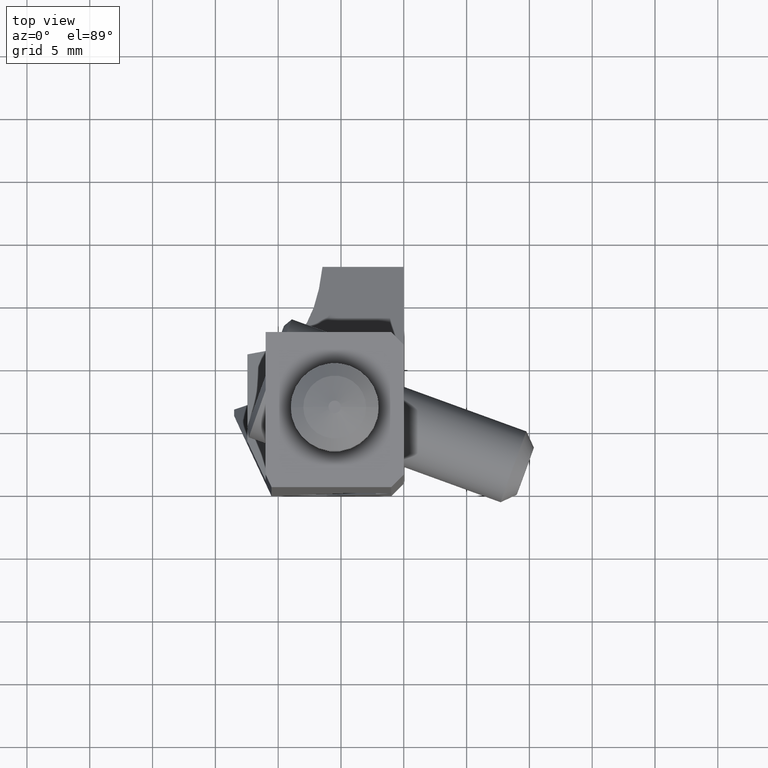
[diagram: clean part render]
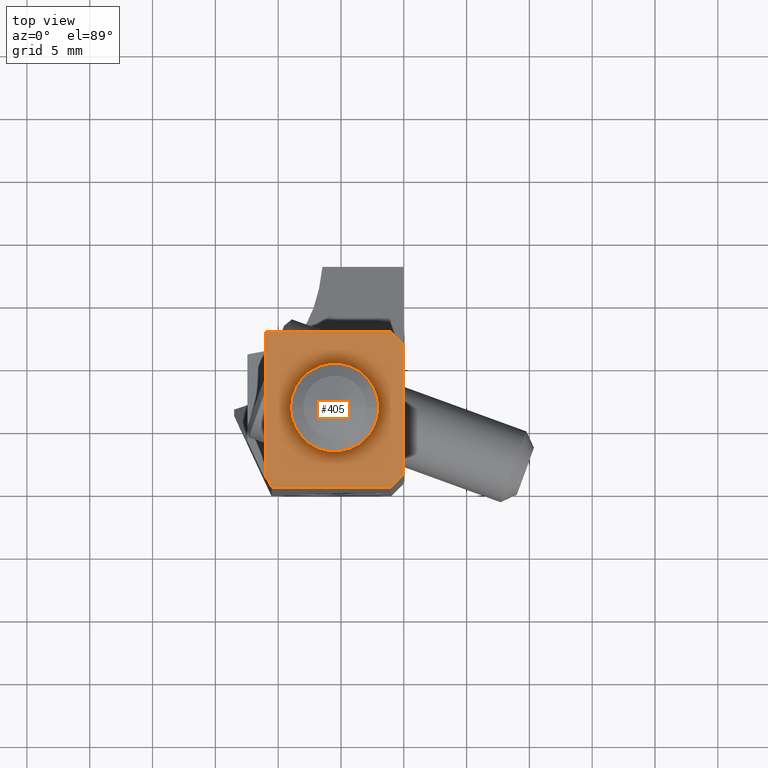
[diagram: same view with one face highlighted and labeled with its STEP entity id]
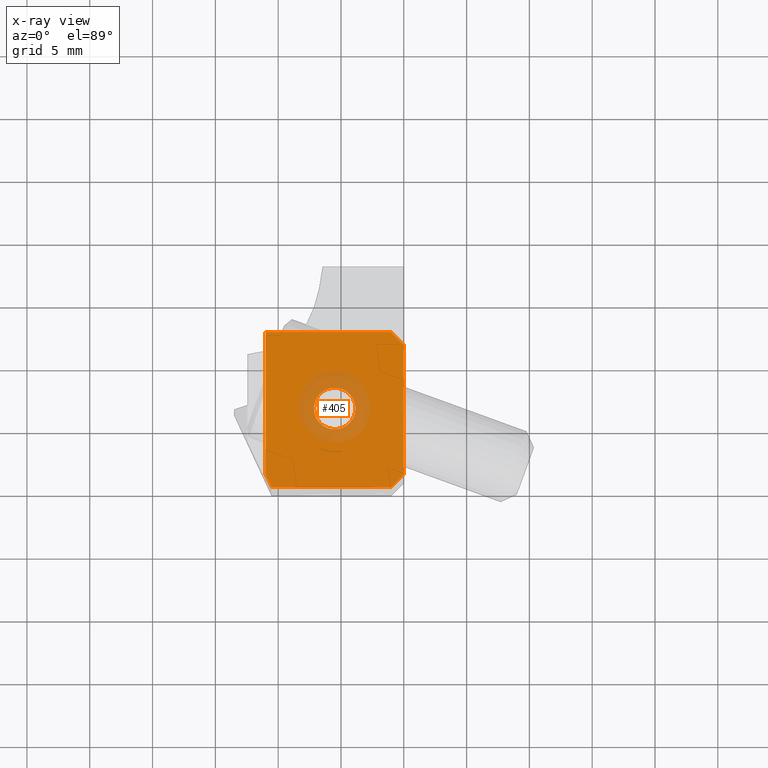
[diagram: x-ray of the same camera — body ghosted, the highlighted face saturated]
A machine part, top view. The second image highlights one B-rep face of the part: STEP entity #405.
The next image is the same camera in x-ray: the body ghosted, the highlighted face saturated — about 13% of this face is hidden behind the body in this view.
In plain terms, the highlighted planar face has unit normal (0, 0, 1).
Its self-contained STEP definition (entity closure, byte-faithful):
#121=FACE_BOUND('',#948,.T.);
#122=FACE_BOUND('',#949,.T.);
#224=CIRCLE('',#4297,1.65);
#225=CIRCLE('',#4298,1.65);
#405=ADVANCED_FACE('',(#121,#122),#617,.T.);
#617=PLANE('',#4299);
#948=EDGE_LOOP('',(#1415,#1416,#1417,#1418,#1419,#1420,#1421));
#949=EDGE_LOOP('',(#1422,#1423));
#1415=ORIENTED_EDGE('',*,*,#2909,.F.);
#1416=ORIENTED_EDGE('',*,*,#2910,.F.);
#1417=ORIENTED_EDGE('',*,*,#2911,.F.);
#1418=ORIENTED_EDGE('',*,*,#2794,.F.);
#1419=ORIENTED_EDGE('',*,*,#2912,.F.);
#1420=ORIENTED_EDGE('',*,*,#2890,.T.);
#1421=ORIENTED_EDGE('',*,*,#2908,.F.);
#1422=ORIENTED_EDGE('',*,*,#2913,.F.);
#1423=ORIENTED_EDGE('',*,*,#2914,.F.);
#2411=VERTEX_POINT('',#5952);
#2412=VERTEX_POINT('',#5954);
#2482=VERTEX_POINT('',#6161);
#2483=VERTEX_POINT('',#6163);
#2495=VERTEX_POINT('',#6199);
#2496=VERTEX_POINT('',#6203);
#2497=VERTEX_POINT('',#6205);
#2498=VERTEX_POINT('',#6209);
#2499=VERTEX_POINT('',#6210);
#2794=EDGE_CURVE('',#2411,#2412,#3385,.T.);
#2890=EDGE_CURVE('',#2483,#2482,#3452,.T.);
#2908=EDGE_CURVE('',#2495,#2482,#3463,.T.);
#2909=EDGE_CURVE('',#2496,#2495,#3464,.T.);
#2910=EDGE_CURVE('',#2497,#2496,#3465,.T.);
#2911=EDGE_CURVE('',#2412,#2497,#3466,.T.);
#2912=EDGE_CURVE('',#2483,#2411,#3467,.T.);
#2913=EDGE_CURVE('',#2498,#2499,#224,.T.);
#2914=EDGE_CURVE('',#2499,#2498,#225,.T.);
#3385=LINE('',#5953,#3738);
#3452=LINE('',#6162,#3805);
#3463=LINE('',#6200,#3816);
#3464=LINE('',#6202,#3817);
#3465=LINE('',#6204,#3818);
#3466=LINE('',#6206,#3819);
#3467=LINE('',#6207,#3820);
#3738=VECTOR('',#4717,1.);
#3805=VECTOR('',#4884,1.);
#3816=VECTOR('',#4915,1.);
#3817=VECTOR('',#4918,1.);
#3818=VECTOR('',#4919,1.);
#3819=VECTOR('',#4920,1.);
#3820=VECTOR('',#4921,1.);
#4297=AXIS2_PLACEMENT_3D('',#6208,#4922,#4923);
#4298=AXIS2_PLACEMENT_3D('',#6211,#4924,#4925);
#4299=AXIS2_PLACEMENT_3D('',#6212,#4926,#4927);
#4717=DIRECTION('',(-1.,-1.831841763832E-14,0.));
#4884=DIRECTION('',(0.,1.,0.));
#4915=DIRECTION('',(0.707106781186547,-0.707106781186547,0.));
#4918=DIRECTION('',(1.,0.,0.));
#4919=DIRECTION('',(3.007360755836E-14,1.,0.));
#4920=DIRECTION('',(-0.422618261741086,0.90630778703647,0.));
#4921=DIRECTION('',(-0.707106781186547,-0.707106781186547,0.));
#4922=DIRECTION('',(0.,0.,1.));
#4923=DIRECTION('',(1.,0.,0.));
#4924=DIRECTION('',(0.,0.,1.));
#4925=DIRECTION('',(-1.,0.,0.));
#4926=DIRECTION('',(0.,0.,1.));
#4927=DIRECTION('',(-1.,0.,0.));
#5952=CARTESIAN_POINT('',(-1.,0.,0.));
#5953=CARTESIAN_POINT('',(-1.,0.,0.));
#5954=CARTESIAN_POINT('',(-10.52942936185,-1.736388810514E-13,0.));
#6161=CARTESIAN_POINT('',(0.,11.35,0.));
#6162=CARTESIAN_POINT('',(0.,1.,0.));
#6163=CARTESIAN_POINT('',(0.,1.,0.));
#6199=CARTESIAN_POINT('',(-1.,12.35,0.));
#6200=CARTESIAN_POINT('',(-1.,12.35,0.));
#6202=CARTESIAN_POINT('',(-11.,12.35,0.));
#6203=CARTESIAN_POINT('',(-11.,12.35,0.));
#6204=CARTESIAN_POINT('',(-11.,1.0091419901,0.));
#6205=CARTESIAN_POINT('',(-11.,1.0091419901,0.));
#6206=CARTESIAN_POINT('',(-10.52942936185,-1.736388810514E-13,0.));
#6207=CARTESIAN_POINT('',(0.,1.,0.));
#6208=CARTESIAN_POINT('',(-5.5,6.25,0.));
#6209=CARTESIAN_POINT('',(-3.85,6.25,1.06581410364E-14));
#6210=CARTESIAN_POINT('',(-7.15,6.25,1.06581410364E-14));
#6211=CARTESIAN_POINT('',(-5.5,6.25,1.06581410364E-14));
#6212=CARTESIAN_POINT('',(-5.5,6.175,0.));